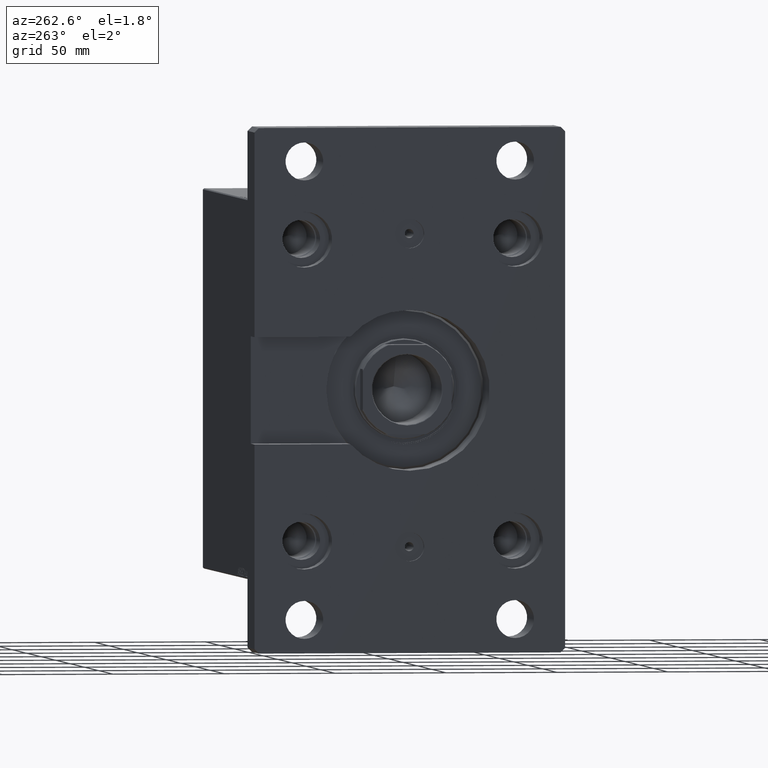
[diagram: clean part render]
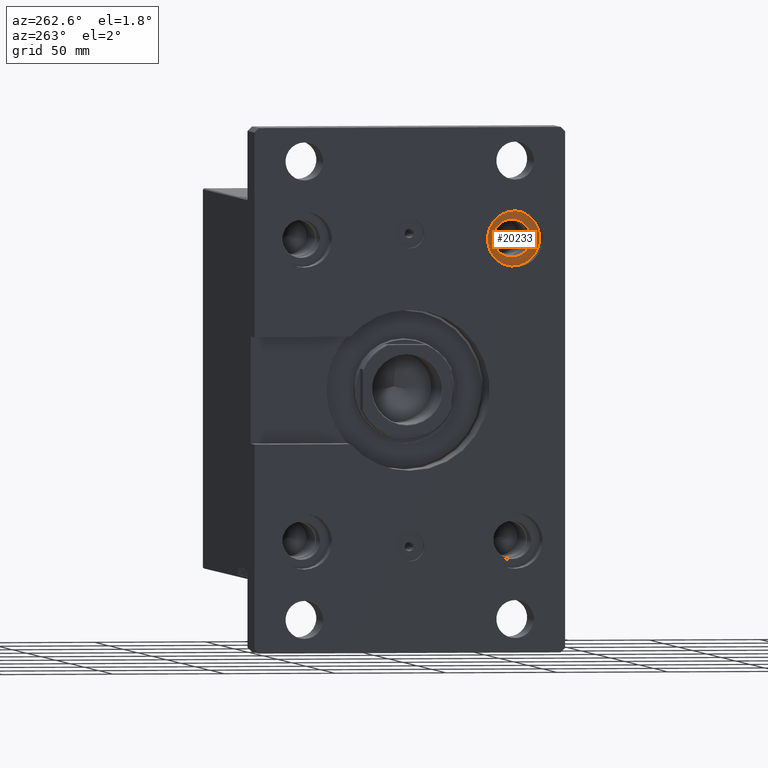
[diagram: same view with one face highlighted and labeled with its STEP entity id]
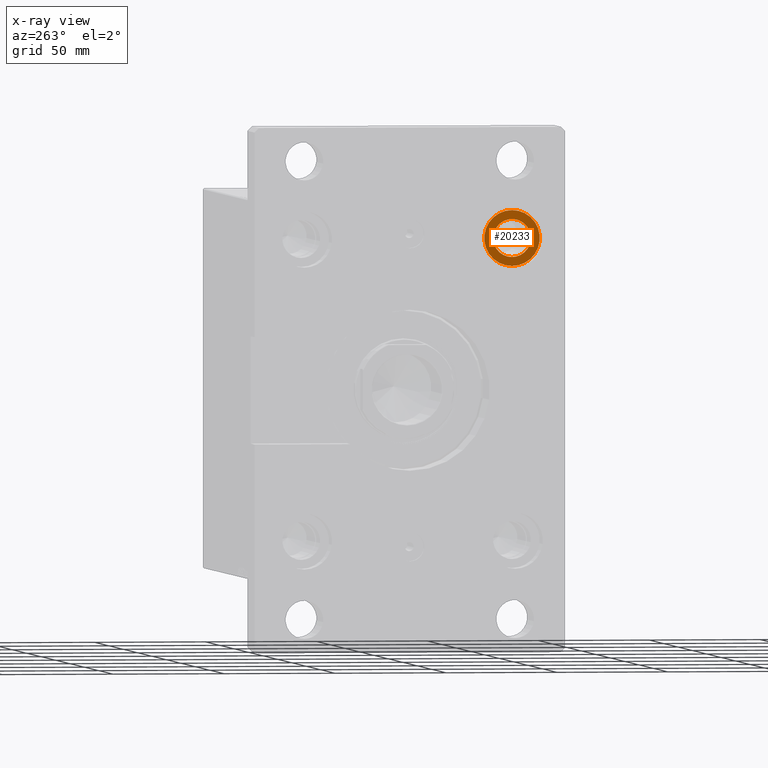
[diagram: x-ray of the same camera — body ghosted, the highlighted face saturated]
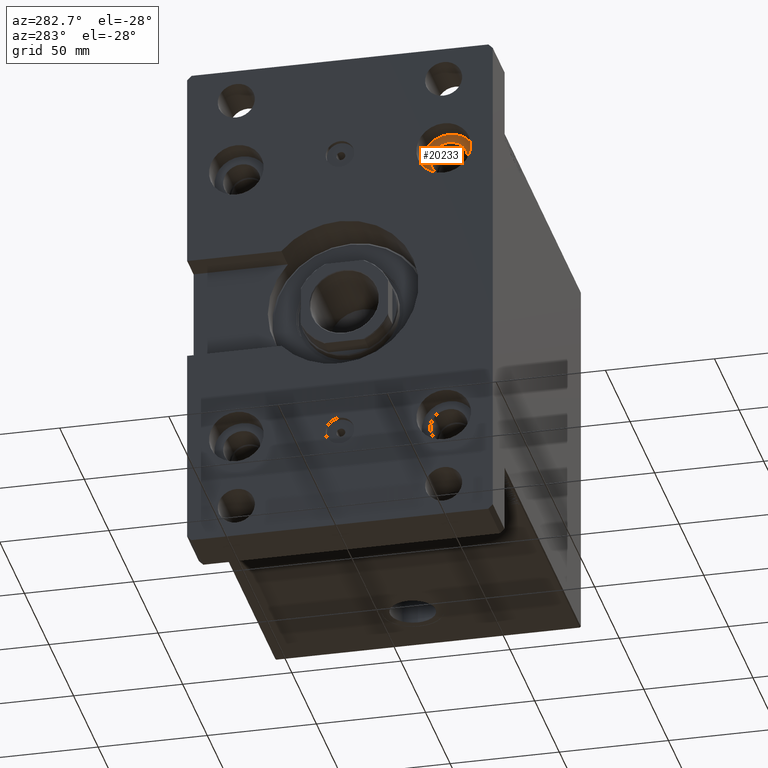
[diagram: same view with one face highlighted and labeled with its STEP entity id]
A machine part, auxiliary view. The second image highlights one B-rep face of the part: STEP entity #20233.
The next image is the same camera in x-ray: the body ghosted, the highlighted face saturated — about 0% of this face is hidden behind the body in this view.
A second angle (auxiliary view) of the same face is appended — the face is thin or edge-on in the first view.
In plain terms, the highlighted planar face has unit normal (-1, 0, 0).
Its self-contained STEP definition (entity closure, byte-faithful):
#118 = ORIENTED_EDGE ( 'NONE', *, *, #16151, .T. ) ;
#273 = VERTEX_POINT ( 'NONE', #3833 ) ;
#2380 = EDGE_CURVE ( 'NONE', #36319, #273, #3376, .T. ) ;
#3376 = CIRCLE ( 'NONE', #47111, 8.500000000000007105 ) ;
#3833 = CARTESIAN_POINT ( 'NONE',  ( 59.00000000000000000, -47.50000000000000000, 13.00000000000000178 ) ) ;
#4220 = VERTEX_POINT ( 'NONE', #26148 ) ;
#4842 = CIRCLE ( 'NONE', #41706, 12.49999999999999645 ) ;
#5201 = FACE_BOUND ( 'NONE', #42636, .T. ) ;
#7037 = DIRECTION ( 'NONE',  ( -0.000000000000000000, -0.000000000000000000, -1.000000000000000000 ) ) ;
#7163 = DIRECTION ( 'NONE',  ( -0.000000000000000000, -0.000000000000000000, -1.000000000000000000 ) ) ;
#7263 = CARTESIAN_POINT ( 'NONE',  ( 67.50000000000000000, -47.50000000000000000, 13.00000000000000178 ) ) ;
#8602 = ORIENTED_EDGE ( 'NONE', *, *, #32049, .T. ) ;
#9144 = AXIS2_PLACEMENT_3D ( 'NONE', #12880, #12401, #27061 ) ;
#10727 = ORIENTED_EDGE ( 'NONE', *, *, #19407, .T. ) ;
#12401 = DIRECTION ( 'NONE',  ( 0.000000000000000000, 0.000000000000000000, 1.000000000000000000 ) ) ;
#12880 = CARTESIAN_POINT ( 'NONE',  ( 67.50000000000000000, -47.50000000000000000, 13.00000000000000178 ) ) ;
#14376 = DIRECTION ( 'NONE',  ( 1.000000000000000000, 0.000000000000000000, 0.000000000000000000 ) ) ;
#14543 = ORIENTED_EDGE ( 'NONE', *, *, #2380, .T. ) ;
#16151 = EDGE_CURVE ( 'NONE', #273, #36319, #34349, .T. ) ;
#16244 = DIRECTION ( 'NONE',  ( 1.000000000000000000, 0.000000000000000000, 0.000000000000000000 ) ) ;
#18620 = DIRECTION ( 'NONE',  ( 0.000000000000000000, 0.000000000000000000, 1.000000000000000000 ) ) ;
#19407 = EDGE_CURVE ( 'NONE', #4220, #45449, #24512, .T. ) ;
#19874 = CARTESIAN_POINT ( 'NONE',  ( 55.00000000000000711, -47.50000000000000000, 13.00000000000000178 ) ) ;
#20233 = ADVANCED_FACE ( 'NONE', ( #23462, #5201 ), #31143, .T. ) ;
#20328 = DIRECTION ( 'NONE',  ( 0.000000000000000000, 0.000000000000000000, 1.000000000000000000 ) ) ;
#21305 = CARTESIAN_POINT ( 'NONE',  ( 67.50000000000000000, -47.50000000000000000, 13.00000000000000178 ) ) ;
#21418 = AXIS2_PLACEMENT_3D ( 'NONE', #23942, #20328, #16244 ) ;
#23462 = FACE_OUTER_BOUND ( 'NONE', #36619, .T. ) ;
#23942 = CARTESIAN_POINT ( 'NONE',  ( 67.50000000000000000, -47.50000000000000000, 13.00000000000000178 ) ) ;
#24512 = CIRCLE ( 'NONE', #21418, 12.49999999999999645 ) ;
#26148 = CARTESIAN_POINT ( 'NONE',  ( 80.00000000000000000, -47.50000000000000000, 13.00000000000000178 ) ) ;
#27061 = DIRECTION ( 'NONE',  ( 1.000000000000000000, 0.000000000000000000, -0.000000000000000000 ) ) ;
#29267 = CARTESIAN_POINT ( 'NONE',  ( 67.50000000000000000, -47.50000000000000000, 13.00000000000000178 ) ) ;
#31143 = PLANE ( 'NONE',  #9144 ) ;
#32049 = EDGE_CURVE ( 'NONE', #45449, #4220, #4842, .T. ) ;
#33264 = DIRECTION ( 'NONE',  ( 1.000000000000000000, 0.000000000000000000, 0.000000000000000000 ) ) ;
#33570 = AXIS2_PLACEMENT_3D ( 'NONE', #7263, #7037, #36571 ) ;
#34349 = CIRCLE ( 'NONE', #33570, 8.500000000000007105 ) ;
#36319 = VERTEX_POINT ( 'NONE', #43271 ) ;
#36571 = DIRECTION ( 'NONE',  ( 1.000000000000000000, 0.000000000000000000, 0.000000000000000000 ) ) ;
#36619 = EDGE_LOOP ( 'NONE', ( #10727, #8602 ) ) ;
#41706 = AXIS2_PLACEMENT_3D ( 'NONE', #21305, #18620, #33264 ) ;
#42636 = EDGE_LOOP ( 'NONE', ( #14543, #118 ) ) ;
#43271 = CARTESIAN_POINT ( 'NONE',  ( 76.00000000000001421, -47.50000000000000000, 13.00000000000000178 ) ) ;
#45449 = VERTEX_POINT ( 'NONE', #19874 ) ;
#47111 = AXIS2_PLACEMENT_3D ( 'NONE', #29267, #7163, #14376 ) ;